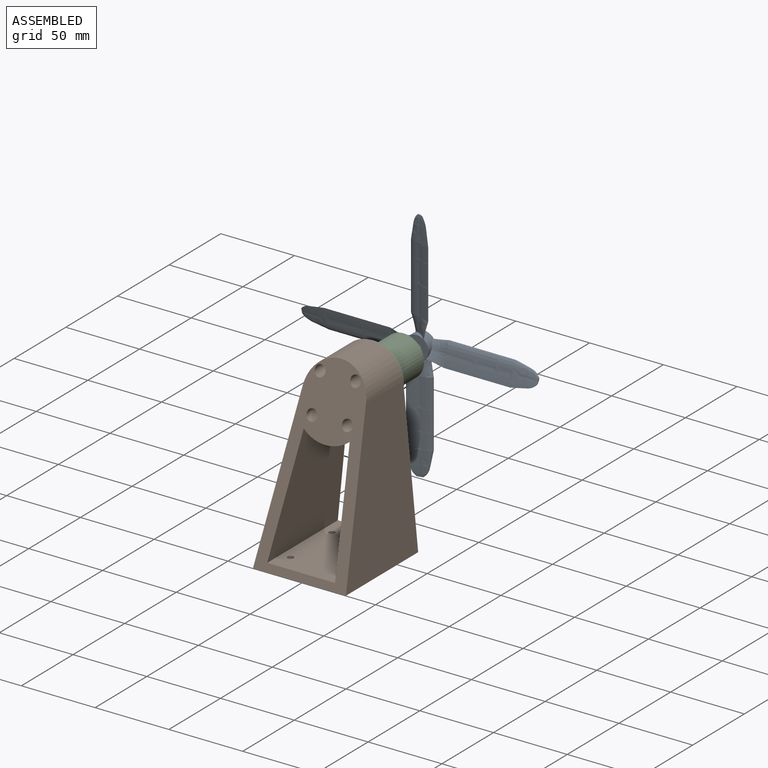
[diagram: assembled view]
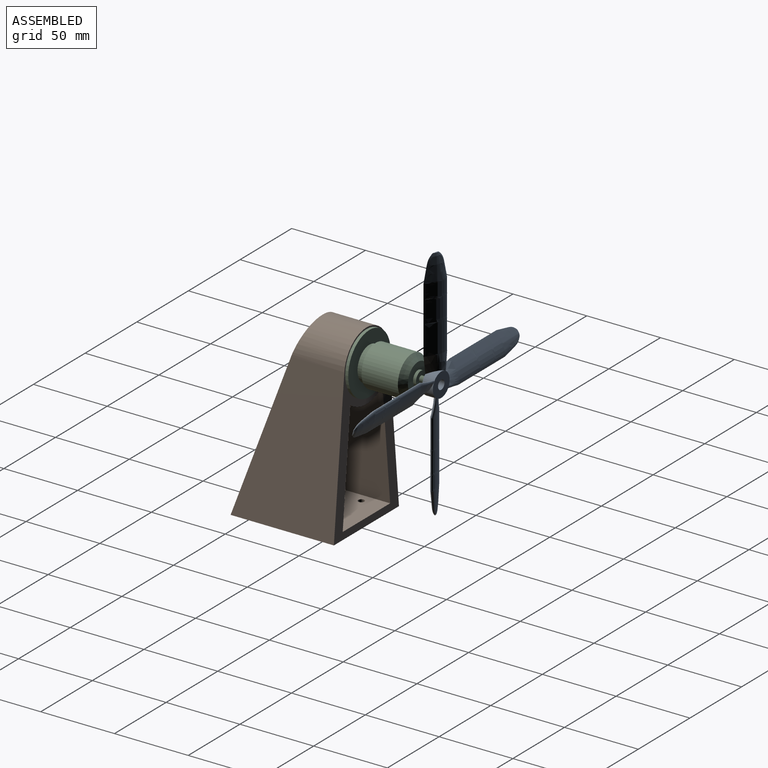
[diagram: assembled view, second angle]
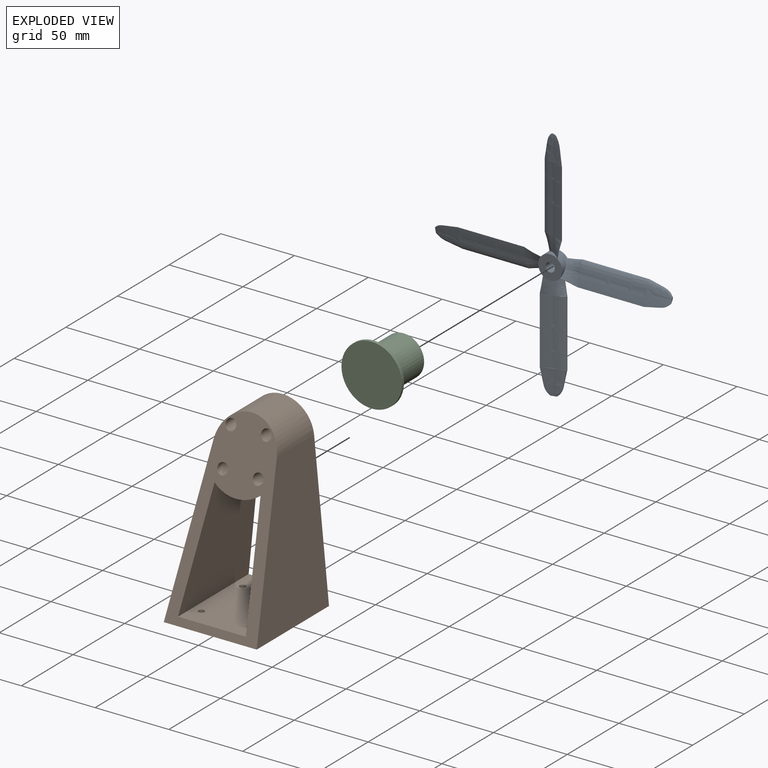
[diagram: exploded view]
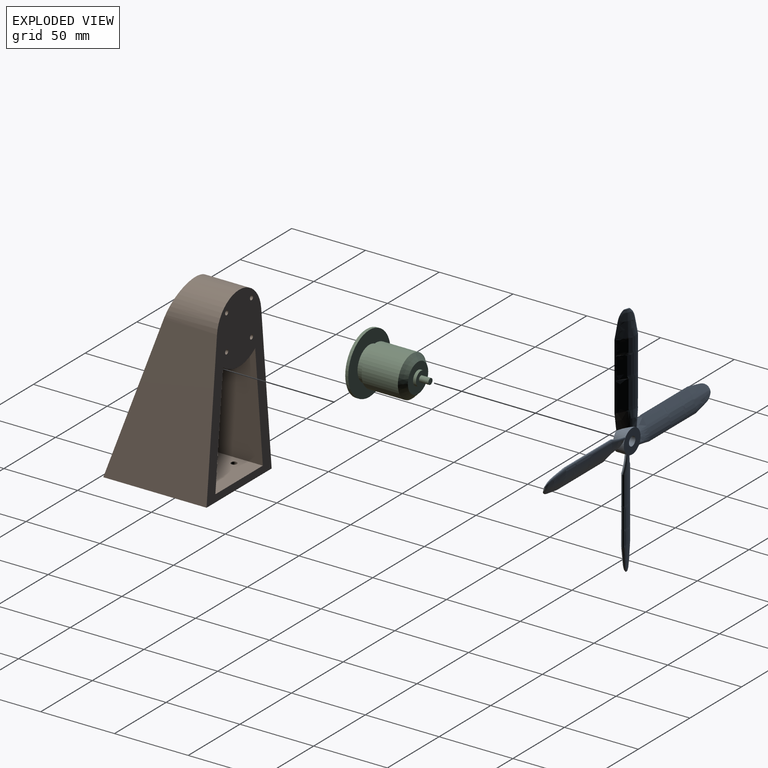
[diagram: exploded view, second angle]
ASSEMBLY  parts=3 mates=2
PART A: 48 faces, bbox 160.5x7.4x160.5 mm
  f0: plane 3.84x1.56mm, normal (0,0,-1), area 2.1mm2, adj f1,f4
  f1: bspline ~17.29x15.16mm, area 214.5mm2, adj f0,f2,f4
  f2: extruded ~15.07x10mm, area 167.3mm2, adj f1,f3,f6
  f3: extruded ~14.94x10mm, area 167.1mm2, adj f2,f4,f5
  f4: bspline ~17.29x15.25mm, area 214.9mm2, adj f0,f1,f3
  f5: extruded ~15x14.94mm, area 250.6mm2, adj f3,f6,f8
  f6: extruded ~15.07x15mm, area 250.6mm2, adj f2,f5,f7
  f7: extruded ~20x15.07mm, area 334mm2, adj f6,f8,f11
  f8: extruded ~20.01x14.94mm, area 334.2mm2, adj f5,f7,f9
  f9: bspline ~15.17x11.98mm, area 155.1mm2, adj f8,f10,f11
  f10: cylinder r=8.1mm len=16.2mm, axis (0,1,0), area 301mm2, adj f9,f11,f12,f13,f23,f24,f34,f36
  f11: bspline ~15.17x11.98mm, area 156.5mm2, adj f7,f9,f10
  f12: bspline ~15.17x11.98mm, area 156.4mm2, adj f10,f13,f21
  f13: bspline ~15.17x11.98mm, area 155.2mm2, adj f10,f12,f14
  f14: extruded ~20.01x14.94mm, area 334.2mm2, adj f13,f15,f21
  f15: extruded ~15x14.94mm, area 250.6mm2, adj f14,f16,f20
  f16: extruded ~14.94x10mm, area 167.2mm2, adj f15,f17,f19
  f17: bspline ~17.29x15.25mm, area 214.9mm2, adj f16,f18,f22
  f18: bspline ~17.29x15.16mm, area 214.5mm2, adj f17,f19,f22
  f19: extruded ~15.07x10mm, area 167.3mm2, adj f16,f18,f20
  f20: extruded ~15.07x15mm, area 250.6mm2, adj f15,f19,f21
  f21: extruded ~20x15.07mm, area 334mm2, adj f12,f14,f20
  f22: plane 3.84x1.56mm, normal (0,0,1), area 2.1mm2, adj f17,f18
  f23: bspline ~15.17x11.98mm, area 155mm2, adj f10,f24,f32
  f24: bspline ~15.17x11.98mm, area 158.7mm2, adj f10,f23,f25
  f25: extruded ~20x15.07mm, area 334mm2, adj f24,f26,f32
  f26: extruded ~15.07x15mm, area 250.6mm2, adj f25,f27,f31
  f27: extruded ~15.07x10mm, area 167.3mm2, adj f26,f28,f30
  f28: bspline ~17.29x15.16mm, area 214.5mm2, adj f27,f29,f33
  f29: bspline ~17.29x15.25mm, area 214.9mm2, adj f28,f30,f33
  f30: extruded ~14.94x10mm, area 167.2mm2, adj f27,f29,f31
  f31: extruded ~15x14.94mm, area 250.6mm2, adj f26,f30,f32
  f32: extruded ~20.01x14.94mm, area 334.2mm2, adj f23,f25,f31
  f33: plane 3.84x1.56mm, normal (1,0,0), area 2.1mm2, adj f28,f29
  f34: plane 16.2x16.2mm, normal (0,-1,0), area 175.9mm2, adj f10,f35
  f35: cylinder r=3.1mm len=7.35mm, axis (0,1,0), area 143.2mm2, adj f34,f36
  f36: plane 16.2x16.2mm, normal (0,1,0), area 175.9mm2, adj f10,f35
  f37: bspline ~15.17x11.98mm, area 158.7mm2, adj f10,f38,f46
  f38: bspline ~15.17x11.98mm, area 155mm2, adj f10,f37,f39
  f39: extruded ~20.01x14.94mm, area 334.2mm2, adj f38,f40,f46
  f40: extruded ~15x14.94mm, area 250.6mm2, adj f39,f41,f45
  f41: extruded ~14.94x10mm, area 167.2mm2, adj f40,f42,f44
  f42: bspline ~17.29x15.25mm, area 214.9mm2, adj f41,f43,f47
  f43: bspline ~17.29x15.16mm, area 214.5mm2, adj f42,f44,f47
  f44: extruded ~15.07x10mm, area 167.3mm2, adj f41,f43,f45
  f45: extruded ~15.07x15mm, area 250.6mm2, adj f40,f44,f46
  f46: extruded ~20x15.07mm, area 334.1mm2, adj f37,f39,f45
  f47: plane 3.84x1.56mm, normal (-1,0,0), area 2.2mm2, adj f42,f43
PART B: 26 faces, bbox 70x121.5x63 mm
  f0: plane 121.5x63mm, normal (1,0,0), area 3238.9mm2, adj f2,f3,f4,f5,f6,f7,f8,f9
  f1: plane 121.5x63mm, normal (-0.95,0.32,0), area 3270.8mm2, adj f2,f3,f5,f6,f7,f8,f12,f13
  f2: plane 70x63mm, normal (0,-1,0), area 4359.7mm2, adj f0,f1,f8,f13,f14,f15,f16,f17
  f3: plane 68.34x45.93mm, normal (0,1,0), area 3088.8mm2, adj f0,f1,f5,f6,f14,f15,f16,f17
  f4: cylinder r=1.5mm len=10mm, axis (1,0,0), area 94.2mm2, adj f0,f25
  f5: plane 74.8x68.34mm, normal (0,-0.1,1), area 4203.7mm2, adj f0,f1,f3,f7
  f6: plane 74.8x68.34mm, normal (0,-0.1,-1), area 4203.7mm2, adj f0,f1,f3,f7
  f7: cylinder r=25.5mm len=45.27mm, axis (1,0,0), area 1495.9mm2, adj f0,f1,f5,f6
  f8: plane 102.12x70mm, normal (0,0.1,-1), area 5443.9mm2, adj f0,f1,f2,f12
  f9: cylinder r=1.5mm len=10mm, axis (1,0,0), area 94.2mm2, adj f0,f23
  f10: cylinder r=1.5mm len=10mm, axis (1,0,0), area 94.2mm2, adj f0,f21
  f11: cylinder r=1.5mm len=10mm, axis (1,0,0), area 94.2mm2, adj f0,f19
  f12: cylinder r=21.5mm len=42.79mm, axis (1,0,0), area 2024.5mm2, adj f0,f1,f8,f13
  f13: plane 102.12x70mm, normal (0,0.1,1), area 5443.9mm2, adj f0,f1,f2,f12
  f14: cylinder r=2mm len=5mm, axis (0,-1,0), area 62.8mm2, adj f2,f3
  f15: cylinder r=2mm len=5mm, axis (0,-1,0), area 62.8mm2, adj f2,f3
  f16: cylinder r=2mm len=5mm, axis (0,-1,0), area 62.8mm2, adj f2,f3
  f17: cylinder r=2mm len=5mm, axis (0,-1,0), area 62.8mm2, adj f2,f3
  f18: cylinder r=3.6mm len=32.01mm, axis (1,0,0), area 696.6mm2, adj f1,f19
  f19: plane 7.2x7.2mm, normal (-1,0,0), area 33.6mm2, adj f11,f18
  f20: cylinder r=3.6mm len=32.01mm, axis (1,0,0), area 696.6mm2, adj f1,f21
  f21: plane 7.2x7.2mm, normal (-1,0,0), area 33.6mm2, adj f10,f20
  f22: cylinder r=3.6mm len=24.03mm, axis (1,0,0), area 516.1mm2, adj f1,f23
  f23: plane 7.2x7.2mm, normal (-1,0,0), area 33.6mm2, adj f9,f22
  f24: cylinder r=3.6mm len=24.03mm, axis (1,0,0), area 516.1mm2, adj f1,f25
  f25: plane 7.2x7.2mm, normal (-1,0,0), area 33.6mm2, adj f4,f24
PART C: 12 faces, bbox 41x41x43.4 mm
  f0: plane 4x4mm, normal (0,0,1), area 12.6mm2, adj f11
  f1: plane 41x41mm, normal (0,0,-1), area 1320.3mm2, adj f2
  f2: cylinder r=20.5mm len=41mm, axis (0,0,1), area 257.6mm2, adj f1,f3
  f3: plane 41x41mm, normal (0,0,1), area 904.8mm2, adj f2,f4
  f4: cylinder r=11.5mm len=23mm, axis (0,0,1), area 316.6mm2, adj f3,f5
  f5: plane 27.7x27.7mm, normal (0,0,-1), area 187.2mm2, adj f4,f6
  f6: cylinder r=13.85mm len=27.7mm, axis (0,0,1), area 2141.2mm2, adj f5,f7
  f7: cone r=13.85mm half-angle=45deg, axis (0,0,-1), area 421.2mm2, adj f6,f8
  f8: plane 19.7x19.7mm, normal (0,0,1), area 230.9mm2, adj f7,f9
  f9: cylinder r=4.85mm len=9.7mm, axis (0,0,1), area 61.3mm2, adj f8,f10
  f10: plane 9.7x9.7mm, normal (0,0,1), area 61.3mm2, adj f9,f11
  f11: cylinder r=2mm len=6.38mm, axis (0,0,1), area 80.1mm2, adj f0,f10
PLACE A rot(axis=(-0.2,0.98,0),0deg) t=(-46.72,60.07,110.98)mm
PLACE B rot(axis=(0.58,0.58,0.58),120deg) t=(-68.22,-3.98,59.28)mm
PLACE C rot(axis=(-1,0,0),90deg) t=(-46.72,13.04,111.01)mm
MATE fastened A.f10 <-> C.f2  axis (0,-1,0) through (-46.72,56.42,111.01)mm
MATE fastened C.f2 <-> B.f7  axis (0,-1,0) through (-46.72,13.04,111.01)mm
